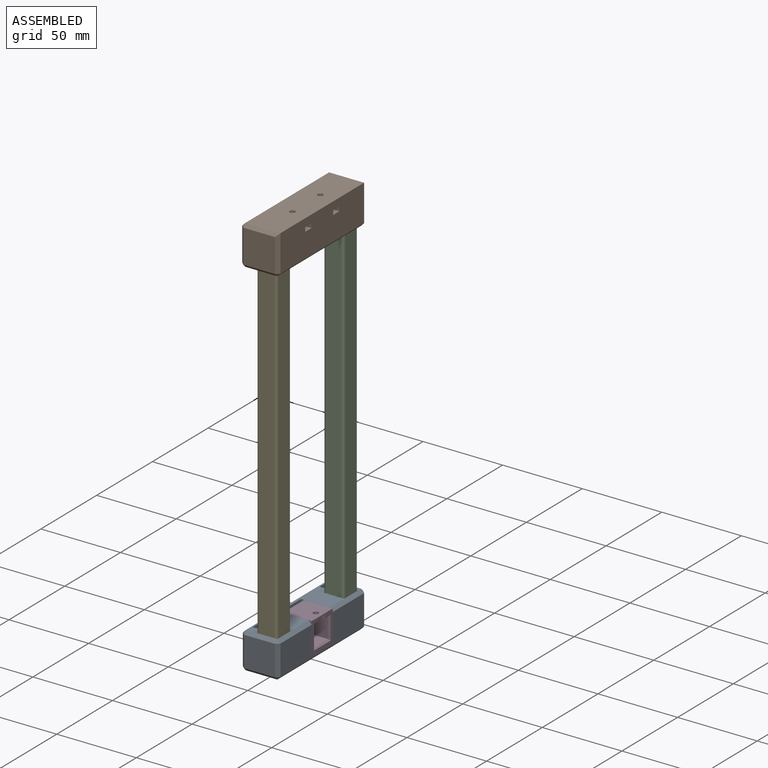
[diagram: assembled view]
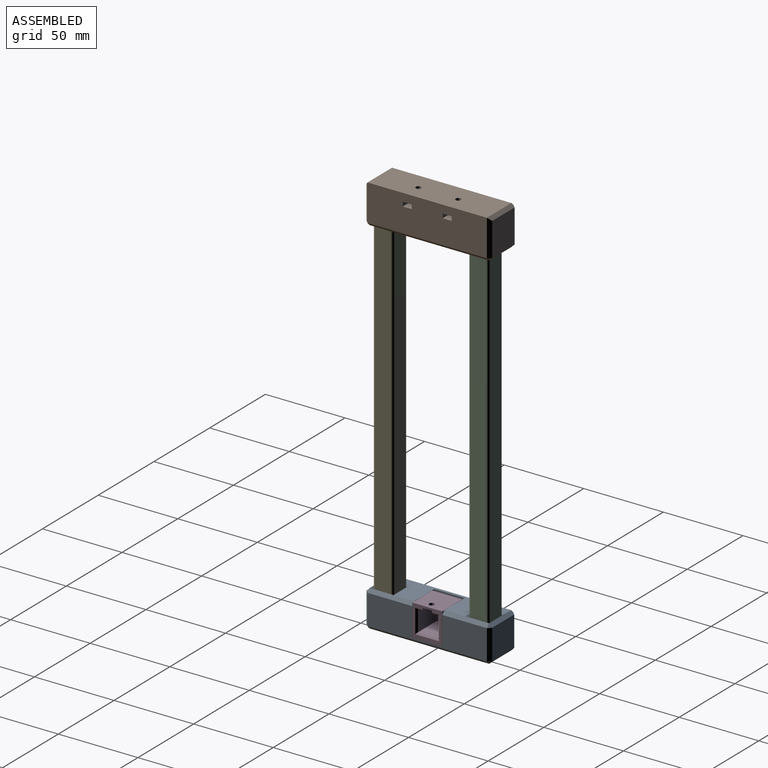
[diagram: assembled view, second angle]
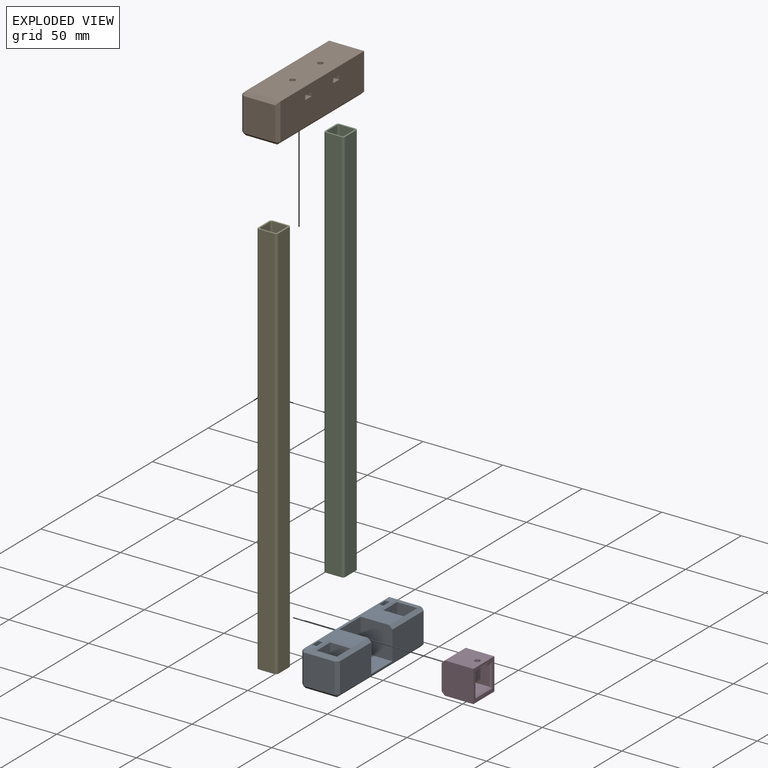
[diagram: exploded view]
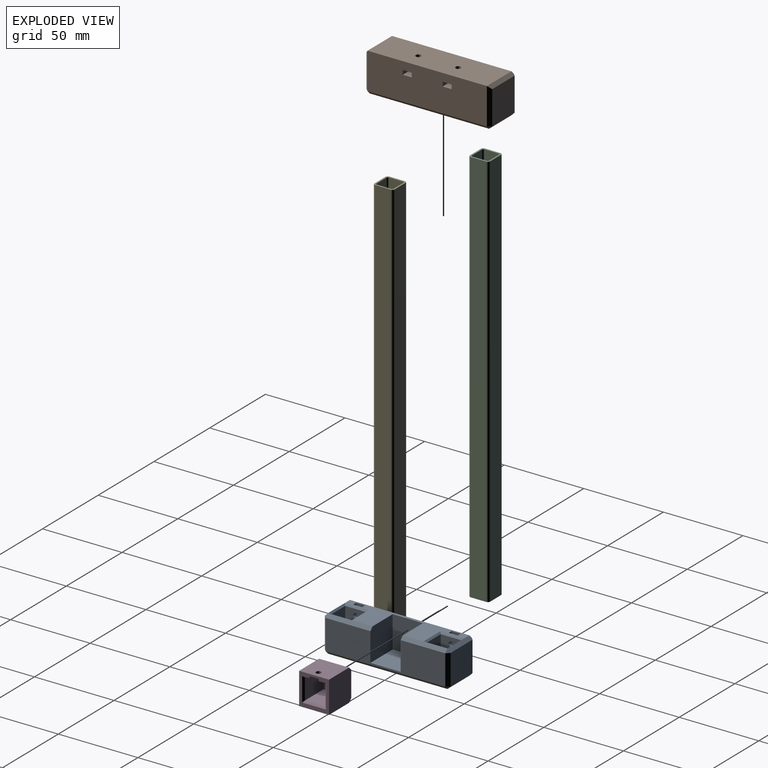
[diagram: exploded view, second angle]
ASSEMBLY  parts=5 mates=4
PART A: 64 faces, bbox 23.6x79x23 mm
  f0: plane 75x19mm, normal (1,0,0), area 1083mm2, adj f16,f17,f18,f35,f36,f40,f41,f42
  f1: plane 75x19.65mm, normal (0,0,1), area 651.2mm2, adj f16,f18,f19,f20,f21,f22,f23,f25
  f2: plane 19.65x19mm, normal (0,1,0), area 373.3mm2, adj f42,f43,f51,f52
  f3: plane 75x19mm, normal (-1,0,0), area 1399.3mm2, adj f30,f32,f34,f44,f49,f52,f55
  f4: plane 19.65x19mm, normal (0,-1,0), area 373.3mm2, adj f39,f40,f49,f50
  f5: plane 75x19.65mm, normal (0,0,-1), area 1473.7mm2, adj f41,f50,f51,f55
  f6: plane 20x13mm, normal (0,-1,0), area 260mm2, adj f7,f13,f14,f57
  f7: plane 20x13mm, normal (-1,0,0), area 260mm2, adj f6,f8,f14,f59
  f8: plane 20x13mm, normal (0,1,0), area 260mm2, adj f7,f13,f14,f58
  f9: plane 20x13mm, normal (0,-1,0), area 260mm2, adj f10,f12,f15,f61
  f10: plane 20x13mm, normal (-1,0,0), area 260mm2, adj f9,f11,f15,f63
  f11: plane 20x13mm, normal (0,1,0), area 260mm2, adj f10,f12,f15,f62
  f12: plane 20x13mm, normal (1,0,0), area 251.4mm2, adj f9,f11,f15,f33,f60
  f13: plane 20x13mm, normal (1,0,0), area 251.4mm2, adj f6,f8,f14,f31,f56
  f14: plane 13x13mm, normal (0,0,1), area 169mm2, adj f6,f7,f8,f13
  f15: plane 13x13mm, normal (0,0,1), area 169mm2, adj f9,f10,f11,f12
  f16: plane 20x20mm, normal (0,1,0), area 398mm2, adj f0,f1,f17,f19,f35
  f17: plane 20x19mm, normal (0,0,1), area 380mm2, adj f0,f16,f18,f19
  f18: plane 20x20mm, normal (0,-1,0), area 398mm2, adj f0,f1,f17,f19,f36
  f19: plane 20x19mm, normal (1,0,0), area 371.4mm2, adj f1,f16,f17,f18,f34
  f20: plane 8x5.65mm, normal (-1,0,0), area 36.6mm2, adj f1,f21,f23,f24,f33
  f21: plane 8x2.7mm, normal (0,-1,0), area 21.6mm2, adj f1,f20,f22,f24
  f22: plane 8x5.65mm, normal (1,0,0), area 36.6mm2, adj f1,f21,f23,f24,f32
  f23: plane 8x2.7mm, normal (0,1,0), area 21.6mm2, adj f1,f20,f22,f24
  f24: plane 5.65x2.7mm, normal (0,0,1), area 15.3mm2, adj f20,f21,f22,f23
  f25: plane 8x5.65mm, normal (-1,0,0), area 36.6mm2, adj f1,f26,f28,f29,f31
  f26: plane 8x2.7mm, normal (0,-1,0), area 21.6mm2, adj f1,f25,f27,f29
  f27: plane 8x5.65mm, normal (1,0,0), area 36.6mm2, adj f1,f26,f28,f29,f30
  f28: plane 8x2.7mm, normal (0,1,0), area 21.6mm2, adj f1,f25,f27,f29
  f29: plane 5.65x2.7mm, normal (0,0,1), area 15.3mm2, adj f25,f26,f27,f28
  f30: cylinder r=1.65mm len=3.3mm, axis (-1,0,0), area 31.1mm2, adj f3,f27
  f31: cylinder r=1.65mm len=3.3mm, axis (-1,0,0), area 20.2mm2, adj f13,f25
  f32: cylinder r=1.65mm len=3.3mm, axis (-1,0,0), area 31.1mm2, adj f3,f22
  f33: cylinder r=1.65mm len=3.3mm, axis (-1,0,0), area 20.2mm2, adj f12,f20
  f34: cylinder r=1.65mm len=3.65mm, axis (-1,0,0), area 37.8mm2, adj f3,f19
  f35: plane 28x2mm, normal (0.71,0,0.71), area 79.2mm2, adj f0,f1,f16,f37,f63
  f36: plane 28x2mm, normal (0.71,0,0.71), area 79.2mm2, adj f0,f1,f18,f38,f59
  f37: plane 2x2mm, normal (0.58,-0.58,0.58), area 3.5mm2, adj f35,f39,f40
  f38: plane 2x2mm, normal (0.58,0.58,0.58), area 3.5mm2, adj f36,f42,f43
  f39: plane 19.65x2mm, normal (0,-0.71,0.71), area 55.6mm2, adj f1,f4,f37,f45,f62
  f40: plane 19x2mm, normal (0.71,-0.71,0), area 53.7mm2, adj f0,f4,f37,f46
  f41: plane 75x2mm, normal (0.71,0,-0.71), area 212.1mm2, adj f0,f5,f46,f47
  f42: plane 19x2mm, normal (0.71,0.71,0), area 53.7mm2, adj f0,f2,f38,f47
  f43: plane 19.65x2mm, normal (0,0.71,0.71), area 55.6mm2, adj f1,f2,f38,f48,f57
  f44: plane 75x2mm, normal (-0.71,0,0.71), area 212.1mm2, adj f1,f3,f45,f48
  f45: plane 2x2mm, normal (-0.58,-0.58,0.58), area 3.5mm2, adj f39,f44,f49
  f46: plane 2x2mm, normal (0.58,-0.58,-0.58), area 3.5mm2, adj f40,f41,f50
  f47: plane 2x2mm, normal (0.58,0.58,-0.58), area 3.5mm2, adj f41,f42,f51
  f48: plane 2x2mm, normal (-0.58,0.58,0.58), area 3.5mm2, adj f43,f44,f52
  f49: plane 19x2mm, normal (-0.71,-0.71,0), area 53.7mm2, adj f3,f4,f45,f53
  f50: plane 19.65x2mm, normal (0,-0.71,-0.71), area 55.6mm2, adj f4,f5,f46,f53
  f51: plane 19.65x2mm, normal (0,0.71,-0.71), area 55.6mm2, adj f2,f5,f47,f54
  f52: plane 19x2mm, normal (-0.71,0.71,0), area 53.7mm2, adj f2,f3,f48,f54
  f53: plane 2x2mm, normal (-0.58,-0.58,-0.58), area 3.5mm2, adj f49,f50,f55
  f54: plane 2x2mm, normal (-0.58,0.58,-0.58), area 3.5mm2, adj f51,f52,f55
  f55: plane 75x2mm, normal (-0.71,0,-0.71), area 212.1mm2, adj f3,f5,f53,f54
  f56: plane 15x1mm, normal (0.71,0,0.71), area 19.8mm2, adj f1,f13,f57,f58
  f57: plane 15x1mm, normal (0,-0.71,0.71), area 19.8mm2, adj f6,f43,f56,f59
  f58: plane 15x1mm, normal (0,0.71,0.71), area 19.8mm2, adj f1,f8,f56,f59
  f59: plane 15x1mm, normal (-0.71,0,0.71), area 19.8mm2, adj f7,f36,f57,f58
  f60: plane 15x1mm, normal (0.71,0,0.71), area 19.8mm2, adj f1,f12,f61,f62
  f61: plane 15x1mm, normal (0,-0.71,0.71), area 19.8mm2, adj f1,f9,f60,f63
  f62: plane 15x1mm, normal (0,0.71,0.71), area 19.8mm2, adj f11,f39,f60,f63
  f63: plane 15x1mm, normal (-0.71,0,0.71), area 19.8mm2, adj f10,f35,f61,f62
PART B: 61 faces, bbox 24x79x25 mm
  f0: plane 75x23mm, normal (1,0,0), area 1694.5mm2, adj f8,f29,f35,f38,f47,f48,f49,f50
  f1: cylinder r=1.65mm len=5mm, axis (0,0,-1), area 51.8mm2, adj f8,f52
  f2: cylinder r=1.65mm len=17.3mm, axis (0,0,-1), area 179.4mm2, adj f4,f54
  f3: cylinder r=1.65mm len=17.3mm, axis (0,0,-1), area 179.4mm2, adj f4,f47
  f4: plane 75x20mm, normal (0,0,-1), area 1114.4mm2, adj f2,f3,f9,f10,f11,f12,f14,f15
  f5: plane 21x20mm, normal (0,1,0), area 420mm2, adj f33,f38,f41,f42
  f6: plane 75x21mm, normal (-1,0,0), area 1557.9mm2, adj f32,f40,f41,f45,f57,f59
  f7: plane 21x20mm, normal (0,-1,0), area 420mm2, adj f31,f35,f39,f40
  f8: plane 75x22mm, normal (0,0,1), area 1632.9mm2, adj f0,f1,f39,f42,f45,f46
  f9: plane 23x13mm, normal (1,0,0), area 290.4mm2, adj f4,f10,f12,f13,f60
  f10: plane 23x13mm, normal (0,1,0), area 299mm2, adj f4,f9,f11,f13
  f11: plane 23x13mm, normal (-1,0,0), area 299mm2, adj f4,f10,f12,f13
  f12: plane 23x13mm, normal (0,-1,0), area 299mm2, adj f4,f9,f11,f13
  f13: plane 13x13mm, normal (0,0,-1), area 169mm2, adj f9,f10,f11,f12
  f14: plane 23x13mm, normal (0,-1,0), area 299mm2, adj f4,f15,f17,f18
  f15: plane 23x13mm, normal (1,0,0), area 290.4mm2, adj f4,f14,f16,f18,f58
  f16: plane 23x13mm, normal (0,1,0), area 299mm2, adj f4,f15,f17,f18
  f17: plane 23x13mm, normal (-1,0,0), area 299mm2, adj f4,f14,f16,f18
  f18: plane 13x13mm, normal (0,0,-1), area 169mm2, adj f14,f15,f16,f17
  f19: plane 8x5.65mm, normal (-1,0,0), area 36.6mm2, adj f4,f20,f22,f23,f60
  f20: plane 8x2.7mm, normal (0,-1,0), area 21.6mm2, adj f4,f19,f21,f23
  f21: plane 8x5.65mm, normal (1,0,0), area 36.6mm2, adj f4,f20,f22,f23,f59
  f22: plane 8x2.7mm, normal (0,1,0), area 21.6mm2, adj f4,f19,f21,f23
  f23: plane 5.65x2.7mm, normal (0,0,-1), area 15.3mm2, adj f19,f20,f21,f22
  f24: plane 8x5.65mm, normal (-1,0,0), area 36.6mm2, adj f4,f25,f27,f28,f58
  f25: plane 8x2.7mm, normal (0,-1,0), area 21.6mm2, adj f4,f24,f26,f28
  f26: plane 8x5.65mm, normal (1,0,0), area 36.6mm2, adj f4,f25,f27,f28,f57
  f27: plane 8x2.7mm, normal (0,1,0), area 21.6mm2, adj f4,f24,f26,f28
  f28: plane 5.65x2.7mm, normal (0,0,-1), area 15.3mm2, adj f24,f25,f26,f27
  f29: plane 75x2mm, normal (0.71,0,-0.71), area 212.1mm2, adj f0,f4,f30,f34
  f30: plane 2x2mm, normal (0.58,-0.58,-0.58), area 3.5mm2, adj f29,f31,f35
  f31: plane 20x2mm, normal (0,-0.71,-0.71), area 56.6mm2, adj f4,f7,f30,f36
  f32: plane 75x2mm, normal (-0.71,0,-0.71), area 212.1mm2, adj f4,f6,f36,f37
  f33: plane 20x2mm, normal (0,0.71,-0.71), area 56.6mm2, adj f4,f5,f34,f37
  f34: plane 2x2mm, normal (0.58,0.58,-0.58), area 3.5mm2, adj f29,f33,f38
  f35: plane 23x2mm, normal (0.71,-0.71,0), area 62.2mm2, adj f0,f7,f30,f39
  f36: plane 2x2mm, normal (-0.58,-0.58,-0.58), area 3.5mm2, adj f31,f32,f40
  f37: plane 2x2mm, normal (-0.58,0.58,-0.58), area 3.5mm2, adj f32,f33,f41
  f38: plane 23x2mm, normal (0.71,0.71,0), area 62.2mm2, adj f0,f5,f34,f42
  f39: plane 22x2mm, normal (0,-0.71,0.71), area 59.4mm2, adj f7,f8,f35,f43
  f40: plane 21x2mm, normal (-0.71,-0.71,0), area 59.4mm2, adj f6,f7,f36,f43
  f41: plane 21x2mm, normal (-0.71,0.71,0), area 59.4mm2, adj f5,f6,f37,f44
  f42: plane 22x2mm, normal (0,0.71,0.71), area 59.4mm2, adj f5,f8,f38,f44
  f43: plane 2x2mm, normal (-0.58,-0.58,0.58), area 3.5mm2, adj f39,f40,f45
  f44: plane 2x2mm, normal (-0.58,0.58,0.58), area 3.5mm2, adj f41,f42,f45
  f45: plane 75x2mm, normal (-0.71,0,0.71), area 212.1mm2, adj f6,f8,f43,f44
  f46: cylinder r=1.65mm len=5mm, axis (0,0,-1), area 51.8mm2, adj f8,f49
  f47: plane 13x5.65mm, normal (0,0,1), area 64.9mm2, adj f0,f3,f48,f50,f51
  f48: plane 13x2.7mm, normal (0,-1,0), area 35.1mm2, adj f0,f47,f49,f51
  f49: plane 13x5.65mm, normal (0,0,-1), area 64.9mm2, adj f0,f46,f48,f50,f51
  f50: plane 13x2.7mm, normal (0,1,0), area 35.1mm2, adj f0,f47,f49,f51
  f51: plane 5.65x2.7mm, normal (1,0,0), area 15.3mm2, adj f47,f48,f49,f50
  f52: plane 13x5.65mm, normal (0,0,-1), area 64.9mm2, adj f0,f1,f53,f55,f56
  f53: plane 13x2.7mm, normal (0,1,0), area 35.1mm2, adj f0,f52,f54,f56
  f54: plane 13x5.65mm, normal (0,0,1), area 64.9mm2, adj f0,f2,f53,f55,f56
  f55: plane 13x2.7mm, normal (0,-1,0), area 35.1mm2, adj f0,f52,f54,f56
  f56: plane 5.65x2.7mm, normal (1,0,0), area 15.3mm2, adj f52,f53,f54,f55
  f57: cylinder r=1.65mm len=3.3mm, axis (-1,0,0), area 27.5mm2, adj f6,f26
  f58: cylinder r=1.65mm len=3.3mm, axis (-1,0,0), area 27.5mm2, adj f15,f24
  f59: cylinder r=1.65mm len=3.3mm, axis (-1,0,0), area 27.5mm2, adj f6,f21
  f60: cylinder r=1.65mm len=3.3mm, axis (-1,0,0), area 27.5mm2, adj f9,f19
PART C: 18 faces, bbox 12.8x12.8x250 mm
  f0: plane 250x9.75mm, normal (1,0,0), area 2437.5mm2, adj f1,f15,f16,f17
  f1: cylinder r=1.5mm len=250mm, axis (0,0,-1), area 589mm2, adj f0,f2,f16,f17
  f2: plane 250x9.75mm, normal (0,1,0), area 2437.5mm2, adj f1,f3,f16,f17
  f3: cylinder r=1.5mm len=250mm, axis (0,0,-1), area 589mm2, adj f2,f4,f16,f17
  f4: plane 250x9.75mm, normal (-1,0,0), area 2437.5mm2, adj f3,f5,f16,f17
  f5: cylinder r=1.5mm len=250mm, axis (0,0,-1), area 589mm2, adj f4,f6,f16,f17
  f6: plane 250x9.75mm, normal (0,-1,0), area 2437.5mm2, adj f5,f15,f16,f17
  f7: cylinder r=1mm len=250mm, axis (0,0,-1), area 392.7mm2, adj f8,f14,f16,f17
  f8: plane 250x8.75mm, normal (-1,0,0), area 2187.5mm2, adj f7,f9,f16,f17
  f9: cylinder r=1mm len=250mm, axis (0,0,-1), area 392.7mm2, adj f8,f10,f16,f17
  f10: plane 250x8.75mm, normal (0,1,0), area 2187.5mm2, adj f9,f11,f16,f17
  f11: cylinder r=1mm len=250mm, axis (0,0,-1), area 392.7mm2, adj f10,f12,f16,f17
  f12: plane 250x8.75mm, normal (1,0,0), area 2187.5mm2, adj f11,f13,f16,f17
  f13: cylinder r=1mm len=250mm, axis (0,0,-1), area 392.7mm2, adj f12,f14,f16,f17
  f14: plane 250x8.75mm, normal (0,-1,0), area 2187.5mm2, adj f7,f13,f16,f17
  f15: cylinder r=1.5mm len=250mm, axis (0,0,-1), area 589mm2, adj f0,f6,f16,f17
  f16: plane 12.75x12.75mm, normal (0,0,1), area 45.9mm2, adj f0,f1,f2,f3,f4,f5,f6,f7
  f17: plane 12.75x12.75mm, normal (0,0,-1), area 45.9mm2, adj f0,f1,f2,f3,f4,f5,f6,f7
PART D: 34 faces, bbox 20x18.8x20 mm
  f0: plane 20x18.8mm, normal (1,0,0), area 143.9mm2, adj f2,f3,f5,f23,f24,f25,f26,f27
  f1: plane 18.8x16mm, normal (-1,0,0), area 292.2mm2, adj f7,f8,f9,f32,f33
  f2: plane 18.8x18mm, normal (0,0,1), area 329.8mm2, adj f0,f9,f31,f32,f33
  f3: plane 18.8x18mm, normal (0,0,-1), area 338.4mm2, adj f0,f8,f32,f33
  f4: plane 17x13mm, normal (0,0,-1), area 180.6mm2, adj f5,f6,f10,f11,f26,f27,f28,f29
  f5: plane 4.68x1mm, normal (0.71,0,-0.71), area 5.9mm2, adj f0,f4,f25,f27
  f6: plane 13x13mm, normal (1,0,0), area 110.5mm2, adj f4,f10,f11,f12,f17,f18,f19,f20
  f7: cylinder r=1.65mm len=3.3mm, axis (-1,0,0), area 20.7mm2, adj f1,f13
  f8: plane 18.8x2mm, normal (-0.71,0,-0.71), area 53.2mm2, adj f1,f3,f32,f33
  f9: plane 18.8x2mm, normal (-0.71,0,0.71), area 53.2mm2, adj f1,f2,f32,f33
  f10: plane 17x13mm, normal (0,-1,0), area 221mm2, adj f4,f6,f12,f24
  f11: plane 17x13mm, normal (0,1,0), area 221mm2, adj f4,f6,f12,f25
  f12: plane 17x13mm, normal (0,0,1), area 221mm2, adj f6,f10,f11,f23
  f13: plane 5.65x5.65mm, normal (1,0,0), area 23.4mm2, adj f7,f14,f15,f16,f21
  f14: plane 5.65x2.25mm, normal (0,0,-1), area 12.7mm2, adj f13,f15,f21,f22
  f15: plane 5.65x2.25mm, normal (0,-1,0), area 12.7mm2, adj f13,f14,f16,f22
  f16: plane 5.65x2.25mm, normal (0,0,1), area 12.7mm2, adj f13,f15,f21,f22
  f17: plane 7.65x2.25mm, normal (0,1,0), area 17.2mm2, adj f6,f18,f20,f22
  f18: plane 7.65x2.25mm, normal (0,0,1), area 17.2mm2, adj f6,f17,f19,f22
  f19: plane 7.65x2.25mm, normal (0,-1,0), area 17.2mm2, adj f6,f18,f20,f22
  f20: plane 7.65x2.25mm, normal (0,0,-1), area 17.2mm2, adj f6,f17,f19,f22
  f21: plane 5.65x2.25mm, normal (0,1,0), area 12.7mm2, adj f13,f14,f16,f22
  f22: plane 7.65x7.65mm, normal (1,0,0), area 26.6mm2, adj f14,f15,f16,f17,f18,f19,f20,f21
  f23: plane 15x1mm, normal (0.71,0,0.71), area 19.8mm2, adj f0,f12,f24,f25
  f24: plane 15x1mm, normal (0.71,-0.71,0), area 19.8mm2, adj f0,f10,f23,f26
  f25: plane 15x1mm, normal (0.71,0.71,0), area 19.8mm2, adj f0,f5,f11,f23
  f26: plane 4.68x1mm, normal (0.71,0,-0.71), area 5.9mm2, adj f0,f4,f24,f29
  f27: plane 8.15x2.25mm, normal (0,1,0), area 17.8mm2, adj f0,f4,f5,f28,f30
  f28: plane 5.65x2.25mm, normal (1,0,0), area 12.7mm2, adj f4,f27,f29,f30
  f29: plane 8.15x2.25mm, normal (0,-1,0), area 17.8mm2, adj f0,f4,f26,f28,f30
  f30: plane 8.15x5.65mm, normal (0,0,-1), area 37.5mm2, adj f0,f27,f28,f29,f31
  f31: cylinder r=1.65mm len=3.3mm, axis (0,0,-1), area 13mm2, adj f2,f30
  f32: plane 20x20mm, normal (0,-1,0), area 396mm2, adj f0,f1,f2,f3,f8,f9
  f33: plane 20x20mm, normal (0,1,0), area 396mm2, adj f0,f1,f2,f3,f8,f9
PART E: same geometry as C
PLACE A t=(2.32,0,0)mm
PLACE B t=(-151.68,0,229)mm
PLACE C rot(axis=(1,0,0),180deg) t=(71.66,30,252)mm
PLACE D t=(2.32,0,0)mm
PLACE E t=(71.66,-30,2)mm
MATE fastened D.f7 <-> A.f34  axis (-1,0,0) through (-8.18,0,13)mm
MATE fastened E.f17 <-> A.f15  axis (0,0,-1) through (2.32,-30,2)mm
MATE fastened C.f17 <-> B.f18  axis (0,0,1) through (2.32,30,252)mm
MATE fastened A.f14 <-> C.f16  axis (0,0,1) through (2.32,30,2)mm
